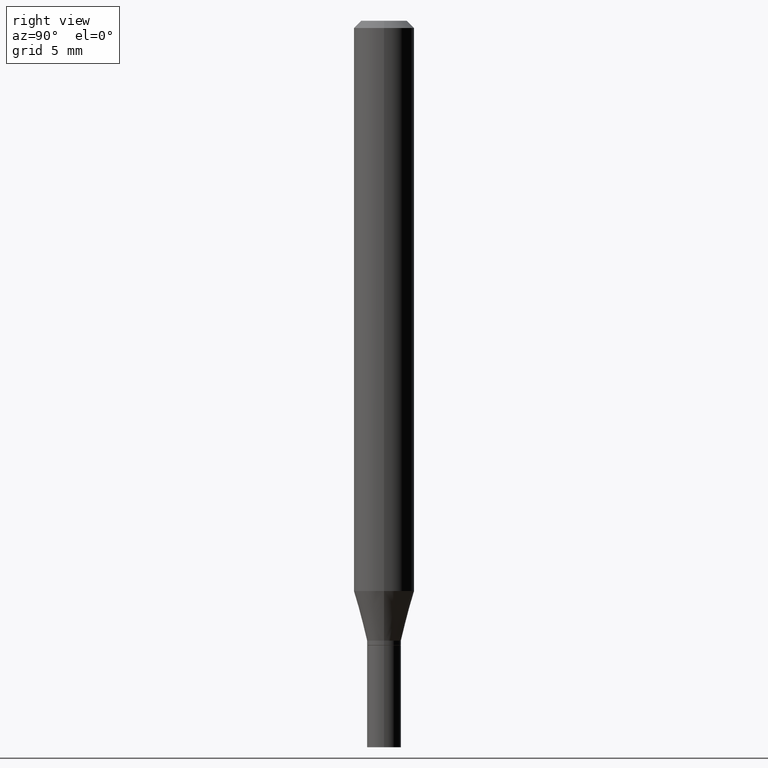
[diagram: clean part render]
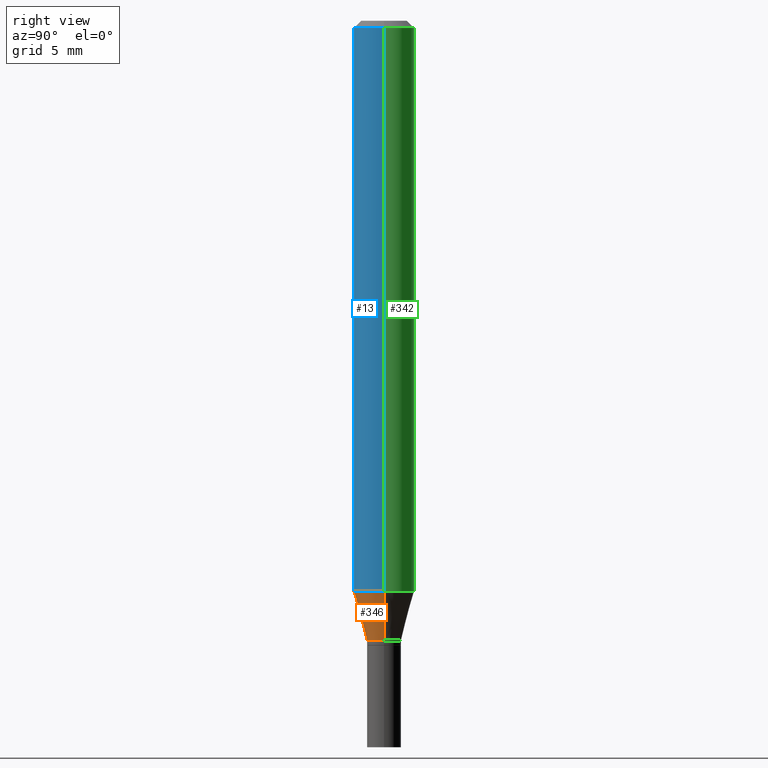
[diagram: same view with three faces highlighted in distinct colors, each labeled with its STEP entity id]
A machine part, right view with three faces highlighted in distinct colors.
Their STEP definitions:

[orange] entity #346 — the highlighted conical surface has half-angle 15 deg.
#18 = FACE_OUTER_BOUND ( 'NONE', #310, .T. ) ;
#24 = DIRECTION ( 'NONE',  ( 1.000000000000000000, -6.982962677686264344E-15, 0.000000000000000000 ) ) ;
#33 = VERTEX_POINT ( 'NONE', #96 ) ;
#42 = CARTESIAN_POINT ( 'NONE',  ( -0.06250000000000000000, -3.666671295737530361E-15, -1.177368602791855734 ) ) ;
#62 = CARTESIAN_POINT ( 'NONE',  ( 2.879218191509262057E-29, -4.110760505587592188E-15, -1.177368602791855734 ) ) ;
#63 = DIRECTION ( 'NONE',  ( -0.2588190451025212391, 5.211531920934549464E-15, 0.9659258262890679791 ) ) ;
#69 = DIRECTION ( 'NONE',  ( -2.445468806185136597E-29, 3.491481338843145583E-15, 1.000000000000000000 ) ) ;
#73 = VECTOR ( 'NONE', #63, 39.37007874015748854 ) ;
#96 = CARTESIAN_POINT ( 'NONE',  ( 0.03499999999999992700, -4.713499807438245807E-15, -1.280000000000000027 ) ) ;
#98 = ORIENTED_EDGE ( 'NONE', *, *, #233, .T. ) ;
#108 = CARTESIAN_POINT ( 'NONE',  ( 0.03499999999999992700, -4.713499807438245807E-15, -1.280000000000000027 ) ) ;
#124 = EDGE_CURVE ( 'NONE', #179, #265, #125, .T. ) ;
#125 = CIRCLE ( 'NONE', #452, 0.06250000000000000000 ) ;
#133 = DIRECTION ( 'NONE',  ( -2.445468806185136597E-29, 3.491481338843145583E-15, 1.000000000000000000 ) ) ;
#142 = ORIENTED_EDGE ( 'NONE', *, *, #428, .F. ) ;
#149 = ORIENTED_EDGE ( 'NONE', *, *, #456, .T. ) ;
#179 = VERTEX_POINT ( 'NONE', #42 ) ;
#189 = AXIS2_PLACEMENT_3D ( 'NONE', #255, #69, #282 ) ;
#200 = VECTOR ( 'NONE', #225, 39.37007874015748854 ) ;
#202 = ORIENTED_EDGE ( 'NONE', *, *, #124, .F. ) ;
#209 = DIRECTION ( 'NONE',  ( 1.000000000000000000, -6.982962677686270655E-15, 0.000000000000000000 ) ) ;
#218 = CARTESIAN_POINT ( 'NONE',  ( -0.03499999999999992700, -4.220406156203192133E-15, -1.280000000000000027 ) ) ;
#225 = DIRECTION ( 'NONE',  ( 0.2588190451025212391, 1.565188264969622362E-15, 0.9659258262890679791 ) ) ;
#233 = EDGE_CURVE ( 'NONE', #33, #265, #321, .T. ) ;
#247 = DIRECTION ( 'NONE',  ( -2.445468806185136597E-29, 3.491481338843145583E-15, 1.000000000000000000 ) ) ;
#251 = LINE ( 'NONE', #218, #73 ) ;
#255 = CARTESIAN_POINT ( 'NONE',  ( 3.130200071916974821E-29, -4.469096113719226630E-15, -1.280000000000000027 ) ) ;
#265 = VERTEX_POINT ( 'NONE', #367 ) ;
#282 = DIRECTION ( 'NONE',  ( 1.000000000000000000, -6.982962677686264344E-15, 0.000000000000000000 ) ) ;
#304 = CARTESIAN_POINT ( 'NONE',  ( 3.130200071916974821E-29, -4.469096113719226630E-15, -1.280000000000000027 ) ) ;
#310 = EDGE_LOOP ( 'NONE', ( #142, #149, #98, #202 ) ) ;
#321 = LINE ( 'NONE', #108, #200 ) ;
#346 = ADVANCED_FACE ( 'NONE', ( #18 ), #370, .T. ) ;
#367 = CARTESIAN_POINT ( 'NONE',  ( 0.06250000000000000000, -4.547195672942984647E-15, -1.177368602791855734 ) ) ;
#370 = CONICAL_SURFACE ( 'NONE', #443, 0.03499999999999992700, 0.2617993877991499629 ) ;
#392 = CIRCLE ( 'NONE', #189, 0.03499999999999992700 ) ;
#394 = CARTESIAN_POINT ( 'NONE',  ( -0.03499999999999992700, -3.943538725970360852E-15, -1.280000000000000027 ) ) ;
#428 = EDGE_CURVE ( 'NONE', #433, #179, #251, .T. ) ;
#433 = VERTEX_POINT ( 'NONE', #394 ) ;
#443 = AXIS2_PLACEMENT_3D ( 'NONE', #304, #133, #24 ) ;
#452 = AXIS2_PLACEMENT_3D ( 'NONE', #62, #247, #209 ) ;
#456 = EDGE_CURVE ( 'NONE', #433, #33, #392, .T. ) ;

[blue] entity #13 — the highlighted cylindrical surface (edge-blend (fillet) strip) has radius 1.5875 mm, axis along (-0, 0, 1).
#13 = ADVANCED_FACE ( 'NONE', ( #23 ), #386, .T. ) ;
#23 = FACE_OUTER_BOUND ( 'NONE', #283, .T. ) ;
#32 = CARTESIAN_POINT ( 'NONE',  ( -0.06250000000000000000, 4.440892098500626162E-16, -3.074334431409316114E-30 ) ) ;
#42 = CARTESIAN_POINT ( 'NONE',  ( -0.06250000000000000000, -3.666671295737530361E-15, -1.177368602791855734 ) ) ;
#52 = DIRECTION ( 'NONE',  ( -2.445468806185136597E-29, 3.491481338843145583E-15, 1.000000000000000000 ) ) ;
#61 = ORIENTED_EDGE ( 'NONE', *, *, #372, .T. ) ;
#62 = CARTESIAN_POINT ( 'NONE',  ( 2.879218191509262057E-29, -4.110760505587592188E-15, -1.177368602791855734 ) ) ;
#99 = DIRECTION ( 'NONE',  ( 1.000000000000000000, -6.982962677686266711E-15, 4.876176775795935793E-29 ) ) ;
#106 = DIRECTION ( 'NONE',  ( -2.445468806185136877E-29, 3.491481338843145188E-15, 1.000000000000000000 ) ) ;
#109 = ORIENTED_EDGE ( 'NONE', *, *, #264, .F. ) ;
#118 = DIRECTION ( 'NONE',  ( 1.000000000000000000, -6.982962677686266711E-15, 0.000000000000000000 ) ) ;
#124 = EDGE_CURVE ( 'NONE', #179, #265, #125, .T. ) ;
#125 = CIRCLE ( 'NONE', #452, 0.06250000000000000000 ) ;
#129 = VECTOR ( 'NONE', #106, 39.37007874015748143 ) ;
#179 = VERTEX_POINT ( 'NONE', #42 ) ;
#209 = DIRECTION ( 'NONE',  ( 1.000000000000000000, -6.982962677686270655E-15, 0.000000000000000000 ) ) ;
#247 = DIRECTION ( 'NONE',  ( -2.445468806185136597E-29, 3.491481338843145583E-15, 1.000000000000000000 ) ) ;
#248 = CARTESIAN_POINT ( 'NONE',  ( -0.06250000000000000000, -1.637477152985057215E-15, -0.01499999999999999944 ) ) ;
#249 = ORIENTED_EDGE ( 'NONE', *, *, #124, .T. ) ;
#264 = EDGE_CURVE ( 'NONE', #423, #419, #406, .T. ) ;
#265 = VERTEX_POINT ( 'NONE', #367 ) ;
#281 = CARTESIAN_POINT ( 'NONE',  ( 0.000000000000000000, 0.000000000000000000, 0.000000000000000000 ) ) ;
#283 = EDGE_LOOP ( 'NONE', ( #332, #249, #61, #109 ) ) ;
#305 = AXIS2_PLACEMENT_3D ( 'NONE', #327, #430, #118 ) ;
#319 = CARTESIAN_POINT ( 'NONE',  ( 0.06250000000000000000, -4.888073874380388472E-16, -0.01499999999999999944 ) ) ;
#327 = CARTESIAN_POINT ( 'NONE',  ( 3.668203209277705088E-31, -5.237222008264718399E-17, -0.01499999999999999944 ) ) ;
#331 = VECTOR ( 'NONE', #451, 39.37007874015748143 ) ;
#332 = ORIENTED_EDGE ( 'NONE', *, *, #445, .F. ) ;
#340 = CARTESIAN_POINT ( 'NONE',  ( 0.06250000000000000000, -4.364351673553916694E-16, 3.047610484872459871E-30 ) ) ;
#345 = LINE ( 'NONE', #340, #331 ) ;
#367 = CARTESIAN_POINT ( 'NONE',  ( 0.06250000000000000000, -4.547195672942984647E-15, -1.177368602791855734 ) ) ;
#372 = EDGE_CURVE ( 'NONE', #265, #419, #345, .T. ) ;
#376 = AXIS2_PLACEMENT_3D ( 'NONE', #281, #52, #99 ) ;
#386 = CYLINDRICAL_SURFACE ( 'NONE', #376, 0.06250000000000000000 ) ;
#396 = LINE ( 'NONE', #32, #129 ) ;
#406 = CIRCLE ( 'NONE', #305, 0.06250000000000000000 ) ;
#419 = VERTEX_POINT ( 'NONE', #319 ) ;
#423 = VERTEX_POINT ( 'NONE', #248 ) ;
#430 = DIRECTION ( 'NONE',  ( -2.445468806185136597E-29, 3.491481338843145583E-15, 1.000000000000000000 ) ) ;
#445 = EDGE_CURVE ( 'NONE', #179, #423, #396, .T. ) ;
#451 = DIRECTION ( 'NONE',  ( -2.445468806185136877E-29, 3.491481338843145188E-15, 1.000000000000000000 ) ) ;
#452 = AXIS2_PLACEMENT_3D ( 'NONE', #62, #247, #209 ) ;

[green] entity #342 — the highlighted cylindrical surface (edge-blend (fillet) strip) has radius 1.5875 mm, axis along (-0, 0, 1).
#17 = FACE_OUTER_BOUND ( 'NONE', #256, .T. ) ;
#32 = CARTESIAN_POINT ( 'NONE',  ( -0.06250000000000000000, 4.440892098500626162E-16, -3.074334431409316114E-30 ) ) ;
#35 = DIRECTION ( 'NONE',  ( -2.445468806185136597E-29, 3.491481338843145583E-15, 1.000000000000000000 ) ) ;
#39 = CIRCLE ( 'NONE', #48, 0.06250000000000000000 ) ;
#42 = CARTESIAN_POINT ( 'NONE',  ( -0.06250000000000000000, -3.666671295737530361E-15, -1.177368602791855734 ) ) ;
#48 = AXIS2_PLACEMENT_3D ( 'NONE', #70, #176, #180 ) ;
#70 = CARTESIAN_POINT ( 'NONE',  ( 3.668203209277705088E-31, -5.237222008264718399E-17, -0.01499999999999999944 ) ) ;
#106 = DIRECTION ( 'NONE',  ( -2.445468806185136877E-29, 3.491481338843145188E-15, 1.000000000000000000 ) ) ;
#129 = VECTOR ( 'NONE', #106, 39.37007874015748143 ) ;
#172 = EDGE_CURVE ( 'NONE', #419, #423, #39, .T. ) ;
#176 = DIRECTION ( 'NONE',  ( -2.445468806185136597E-29, 3.491481338843145583E-15, 1.000000000000000000 ) ) ;
#179 = VERTEX_POINT ( 'NONE', #42 ) ;
#180 = DIRECTION ( 'NONE',  ( 1.000000000000000000, -6.982962677686266711E-15, 0.000000000000000000 ) ) ;
#190 = EDGE_CURVE ( 'NONE', #265, #179, #362, .T. ) ;
#215 = ORIENTED_EDGE ( 'NONE', *, *, #372, .F. ) ;
#221 = CARTESIAN_POINT ( 'NONE',  ( 2.879218191509262057E-29, -4.110760505587592188E-15, -1.177368602791855734 ) ) ;
#234 = AXIS2_PLACEMENT_3D ( 'NONE', #221, #35, #290 ) ;
#248 = CARTESIAN_POINT ( 'NONE',  ( -0.06250000000000000000, -1.637477152985057215E-15, -0.01499999999999999944 ) ) ;
#256 = EDGE_LOOP ( 'NONE', ( #324, #401, #280, #215 ) ) ;
#265 = VERTEX_POINT ( 'NONE', #367 ) ;
#271 = AXIS2_PLACEMENT_3D ( 'NONE', #449, #454, #309 ) ;
#277 = CYLINDRICAL_SURFACE ( 'NONE', #271, 0.06250000000000000000 ) ;
#280 = ORIENTED_EDGE ( 'NONE', *, *, #172, .F. ) ;
#290 = DIRECTION ( 'NONE',  ( 1.000000000000000000, -6.982962677686270655E-15, 0.000000000000000000 ) ) ;
#309 = DIRECTION ( 'NONE',  ( 1.000000000000000000, -6.982962677686266711E-15, 4.876176775795935793E-29 ) ) ;
#319 = CARTESIAN_POINT ( 'NONE',  ( 0.06250000000000000000, -4.888073874380388472E-16, -0.01499999999999999944 ) ) ;
#324 = ORIENTED_EDGE ( 'NONE', *, *, #190, .T. ) ;
#331 = VECTOR ( 'NONE', #451, 39.37007874015748143 ) ;
#340 = CARTESIAN_POINT ( 'NONE',  ( 0.06250000000000000000, -4.364351673553916694E-16, 3.047610484872459871E-30 ) ) ;
#342 = ADVANCED_FACE ( 'NONE', ( #17 ), #277, .T. ) ;
#345 = LINE ( 'NONE', #340, #331 ) ;
#362 = CIRCLE ( 'NONE', #234, 0.06250000000000000000 ) ;
#367 = CARTESIAN_POINT ( 'NONE',  ( 0.06250000000000000000, -4.547195672942984647E-15, -1.177368602791855734 ) ) ;
#372 = EDGE_CURVE ( 'NONE', #265, #419, #345, .T. ) ;
#396 = LINE ( 'NONE', #32, #129 ) ;
#401 = ORIENTED_EDGE ( 'NONE', *, *, #445, .T. ) ;
#419 = VERTEX_POINT ( 'NONE', #319 ) ;
#423 = VERTEX_POINT ( 'NONE', #248 ) ;
#445 = EDGE_CURVE ( 'NONE', #179, #423, #396, .T. ) ;
#449 = CARTESIAN_POINT ( 'NONE',  ( 0.000000000000000000, 0.000000000000000000, 0.000000000000000000 ) ) ;
#451 = DIRECTION ( 'NONE',  ( -2.445468806185136877E-29, 3.491481338843145188E-15, 1.000000000000000000 ) ) ;
#454 = DIRECTION ( 'NONE',  ( -2.445468806185136597E-29, 3.491481338843145583E-15, 1.000000000000000000 ) ) ;